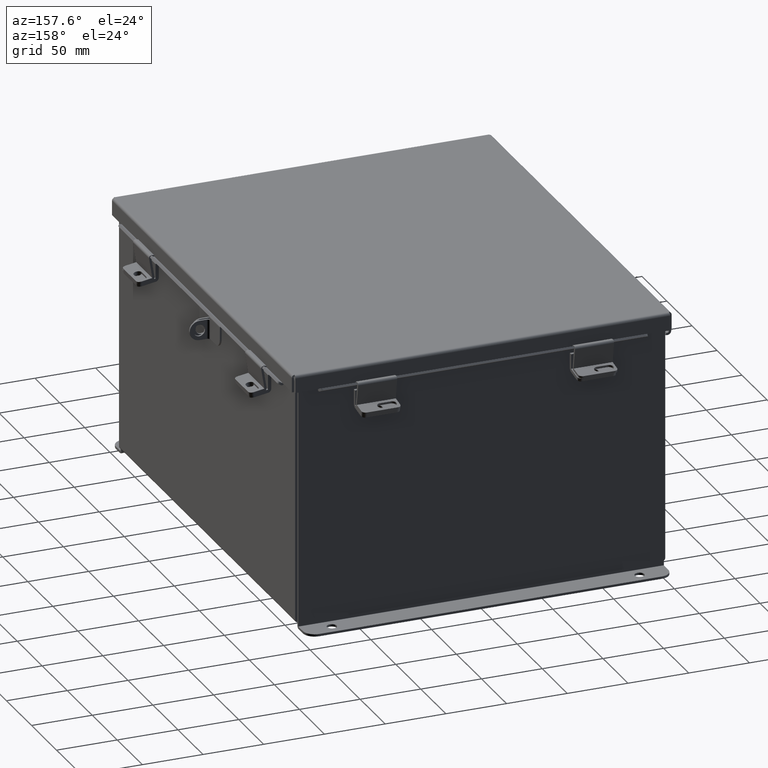
[diagram: clean part render]
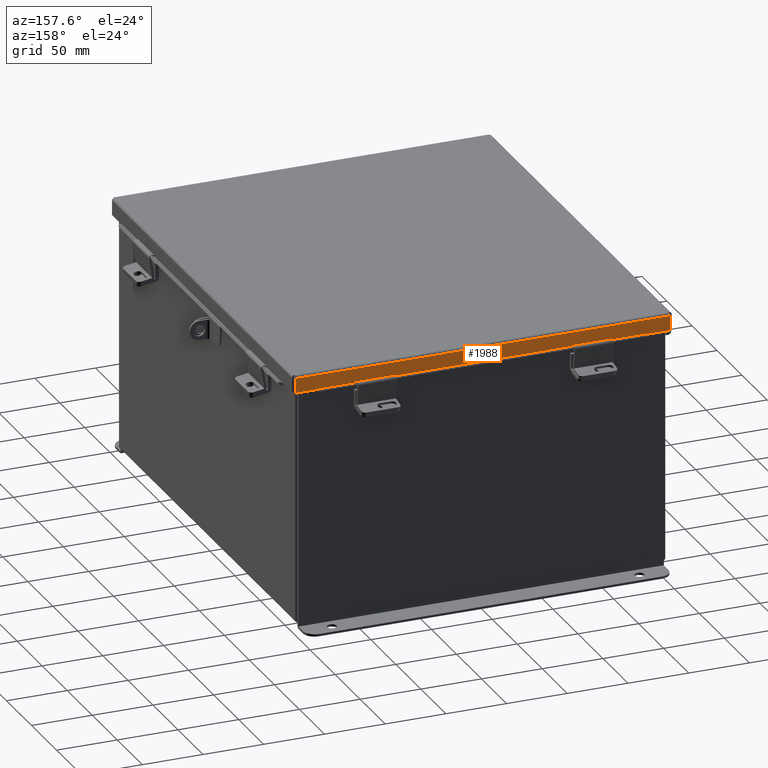
[diagram: same view with one face highlighted and labeled with its STEP entity id]
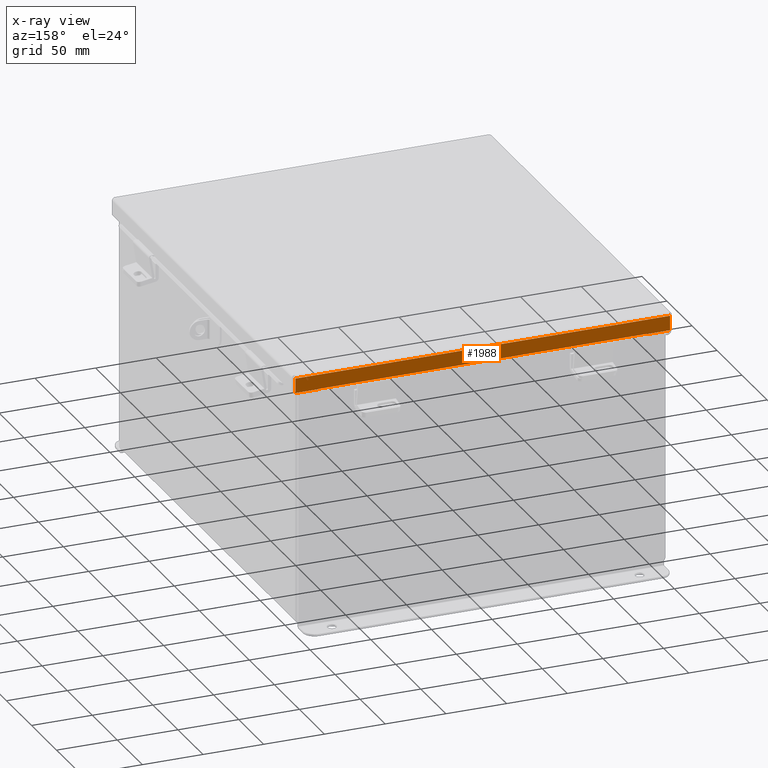
[diagram: x-ray of the same camera — body ghosted, the highlighted face saturated]
A machine part, auxiliary view. The second image highlights one B-rep face of the part: STEP entity #1988.
The next image is the same camera in x-ray: the body ghosted, the highlighted face saturated — about 0% of this face is hidden behind the body in this view.
In plain terms, the highlighted planar face has unit normal (-0, -1, -0).
Its self-contained STEP definition (entity closure, byte-faithful):
#383 = DIRECTION ( 'NONE',  ( -0.0000000000000000000, 4.484872552701437000E-015, 1.000000000000000000 ) ) ;
#437 = ORIENTED_EDGE ( 'NONE', *, *, #7285, .T. ) ;
#748 = EDGE_CURVE ( 'NONE', #3367, #17158, #1286, .T. ) ;
#1286 = LINE ( 'NONE', #8168, #4767 ) ;
#1292 = DIRECTION ( 'NONE',  ( 0.0000000000000000000, 0.0000000000000000000, 1.000000000000000000 ) ) ;
#1309 = VERTEX_POINT ( 'NONE', #5062 ) ;
#1348 = CARTESIAN_POINT ( 'NONE',  ( -5.324478932188136500, 7.156250000000002700, 0.4717115427318791500 ) ) ;
#1507 = CARTESIAN_POINT ( 'NONE',  ( 5.324478932188133000, 7.156250000000001800, 0.4717115427318791500 ) ) ;
#1634 = CARTESIAN_POINT ( 'NONE',  ( -6.074478932188137400, 7.156250000000001800, 0.4872999999999997300 ) ) ;
#1880 = DIRECTION ( 'NONE',  ( 0.0000000000000000000, 4.484872552701437000E-015, 1.000000000000000000 ) ) ;
#1901 = CARTESIAN_POINT ( 'NONE',  ( 5.324478932188134700, 7.156250000000003600, 0.4872999999999991200 ) ) ;
#1970 = VECTOR ( 'NONE', #383, 39.37007874015748100 ) ;
#1988 = ADVANCED_FACE ( 'NONE', ( #10118 ), #7526, .F. ) ;
#2509 = LINE ( 'NONE', #6794, #5944 ) ;
#3141 = CARTESIAN_POINT ( 'NONE',  ( -6.074478932188135600, 7.156249999999999100, -3.235568286128124100E-014 ) ) ;
#3367 = VERTEX_POINT ( 'NONE', #1507 ) ;
#3855 = CARTESIAN_POINT ( 'NONE',  ( -5.324478932188136500, 7.156250000000001800, 0.4872999999999997900 ) ) ;
#4313 = DIRECTION ( 'NONE',  ( 1.000000000000000000, 0.0000000000000000000, 5.546899479521349200E-018 ) ) ;
#4402 = AXIS2_PLACEMENT_3D ( 'NONE', #8108, #13564, #11072 ) ;
#4669 = CARTESIAN_POINT ( 'NONE',  ( 6.156249999999998200, 7.156249999999999100, 0.01299999999999978100 ) ) ;
#4767 = VECTOR ( 'NONE', #13097, 39.37007874015748100 ) ;
#5034 = LINE ( 'NONE', #4669, #12257 ) ;
#5062 = CARTESIAN_POINT ( 'NONE',  ( 6.074478932188134700, 7.156249999999999100, 0.01299999999999977400 ) ) ;
#5080 = DIRECTION ( 'NONE',  ( 1.000000000000000000, 0.0000000000000000000, 5.546899479521349200E-018 ) ) ;
#5487 = VECTOR ( 'NONE', #1880, 39.37007874015748100 ) ;
#5944 = VECTOR ( 'NONE', #5080, 39.37007874015748100 ) ;
#6086 = DIRECTION ( 'NONE',  ( 1.000000000000000000, -2.487713722829918300E-032, 1.089533968265403200E-046 ) ) ;
#6155 = LINE ( 'NONE', #12968, #17319 ) ;
#6632 = CARTESIAN_POINT ( 'NONE',  ( 5.324478932188134700, 7.156250000000001800, 0.4872999999999997900 ) ) ;
#6657 = EDGE_CURVE ( 'NONE', #6693, #18200, #9301, .T. ) ;
#6693 = VERTEX_POINT ( 'NONE', #10446 ) ;
#6704 = EDGE_CURVE ( 'NONE', #6693, #1309, #5034, .T. ) ;
#6794 = CARTESIAN_POINT ( 'NONE',  ( -2.703004116370754100E-018, 7.156250000000001800, 0.4872999999999997900 ) ) ;
#7241 = EDGE_CURVE ( 'NONE', #17158, #7466, #18055, .T. ) ;
#7285 = EDGE_CURVE ( 'NONE', #8105, #9005, #2509, .T. ) ;
#7466 = VERTEX_POINT ( 'NONE', #3855 ) ;
#7526 = PLANE ( 'NONE',  #4402 ) ;
#8105 = VERTEX_POINT ( 'NONE', #6632 ) ;
#8108 = CARTESIAN_POINT ( 'NONE',  ( 1.780270132900160200E-031, 7.156249999999999100, -3.235568286128124100E-014 ) ) ;
#8168 = CARTESIAN_POINT ( 'NONE',  ( 5.324478932188134700, 7.156250000000002700, 0.4717115427318791500 ) ) ;
#8875 = CARTESIAN_POINT ( 'NONE',  ( -5.324478932188136500, 7.156250000000001800, 0.4717115427318791500 ) ) ;
#9005 = VERTEX_POINT ( 'NONE', #17948 ) ;
#9224 = LINE ( 'NONE', #17944, #1970 ) ;
#9301 = LINE ( 'NONE', #3141, #5487 ) ;
#9359 = ORIENTED_EDGE ( 'NONE', *, *, #12350, .F. ) ;
#10118 = FACE_OUTER_BOUND ( 'NONE', #10956, .T. ) ;
#10446 = CARTESIAN_POINT ( 'NONE',  ( -6.074478932188137400, 7.156249999999999100, 0.01299999999999978100 ) ) ;
#10717 = LINE ( 'NONE', #1901, #14172 ) ;
#10956 = EDGE_LOOP ( 'NONE', ( #9359, #437, #18519, #13880, #12039, #15764, #17297, #17524 ) ) ;
#11072 = DIRECTION ( 'NONE',  ( 0.0000000000000000000, -4.484872552701437000E-015, -1.000000000000000000 ) ) ;
#12039 = ORIENTED_EDGE ( 'NONE', *, *, #6657, .T. ) ;
#12257 = VECTOR ( 'NONE', #6086, 39.37007874015748100 ) ;
#12350 = EDGE_CURVE ( 'NONE', #8105, #3367, #10717, .T. ) ;
#12968 = CARTESIAN_POINT ( 'NONE',  ( -2.703004116370754100E-018, 7.156250000000001800, 0.4872999999999997900 ) ) ;
#13097 = DIRECTION ( 'NONE',  ( -1.000000000000000000, -0.0000000000000000000, -0.0000000000000000000 ) ) ;
#13564 = DIRECTION ( 'NONE',  ( -2.487713722829918300E-032, -1.000000000000000000, 4.484872552701437000E-015 ) ) ;
#13880 = ORIENTED_EDGE ( 'NONE', *, *, #6704, .F. ) ;
#14172 = VECTOR ( 'NONE', #16526, 39.37007874015748100 ) ;
#15764 = ORIENTED_EDGE ( 'NONE', *, *, #18042, .T. ) ;
#16526 = DIRECTION ( 'NONE',  ( -7.009925220120870000E-014, -7.009925220120870000E-014, -1.000000000000000000 ) ) ;
#17158 = VERTEX_POINT ( 'NONE', #8875 ) ;
#17297 = ORIENTED_EDGE ( 'NONE', *, *, #7241, .F. ) ;
#17319 = VECTOR ( 'NONE', #4313, 39.37007874015748100 ) ;
#17524 = ORIENTED_EDGE ( 'NONE', *, *, #748, .F. ) ;
#17584 = VECTOR ( 'NONE', #1292, 39.37007874015748100 ) ;
#17944 = CARTESIAN_POINT ( 'NONE',  ( 6.074478932188134700, 7.156249999999999100, -3.350199796867980800E-016 ) ) ;
#17948 = CARTESIAN_POINT ( 'NONE',  ( 6.074478932188134700, 7.156250000000001800, 0.4872999999999997900 ) ) ;
#18042 = EDGE_CURVE ( 'NONE', #18200, #7466, #6155, .T. ) ;
#18055 = LINE ( 'NONE', #1348, #17584 ) ;
#18200 = VERTEX_POINT ( 'NONE', #1634 ) ;
#18519 = ORIENTED_EDGE ( 'NONE', *, *, #18745, .F. ) ;
#18745 = EDGE_CURVE ( 'NONE', #1309, #9005, #9224, .T. ) ;